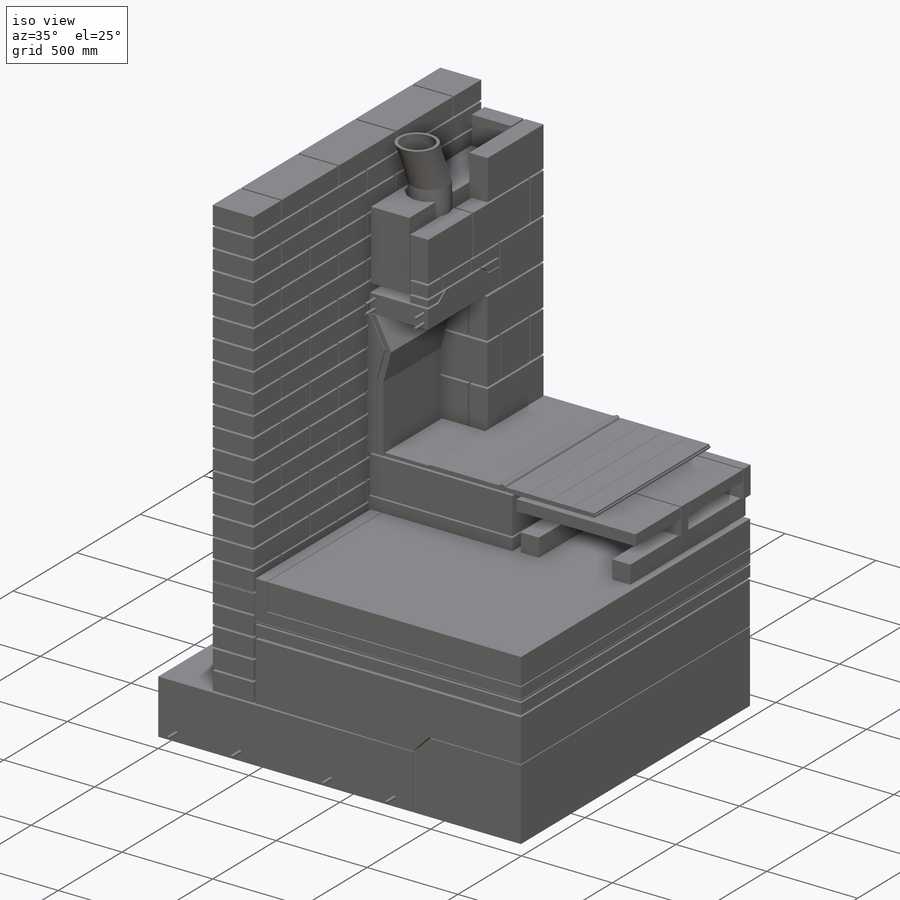
[diagram: iso view]
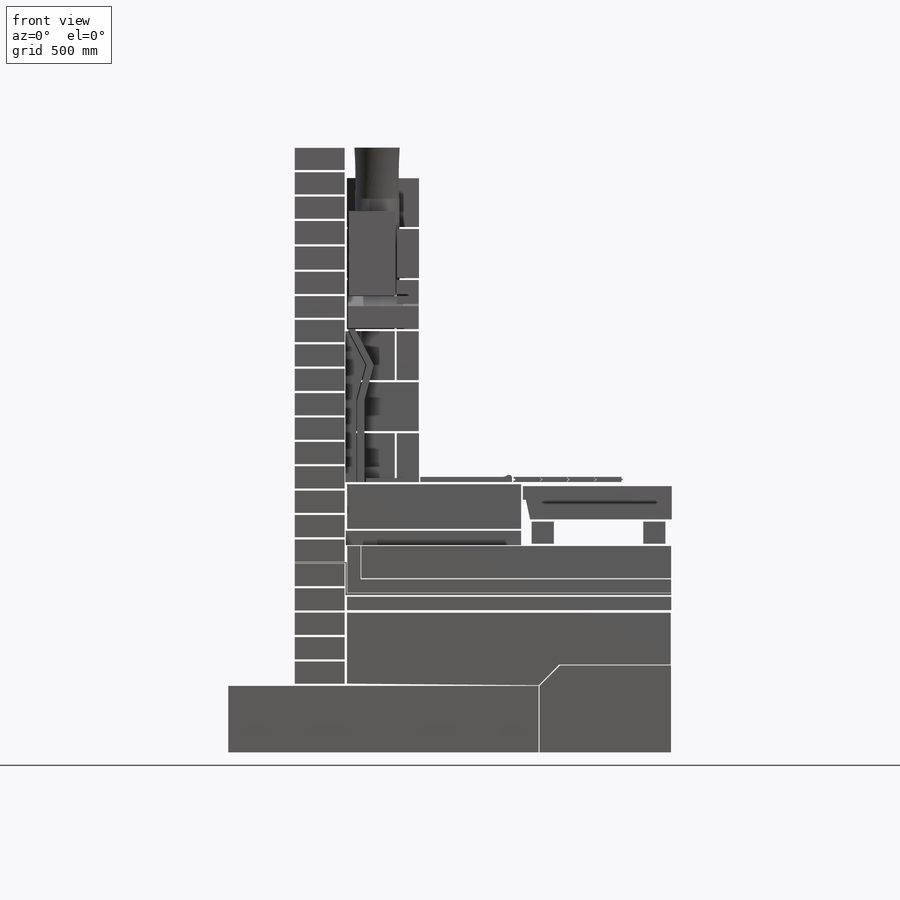
[diagram: front view]
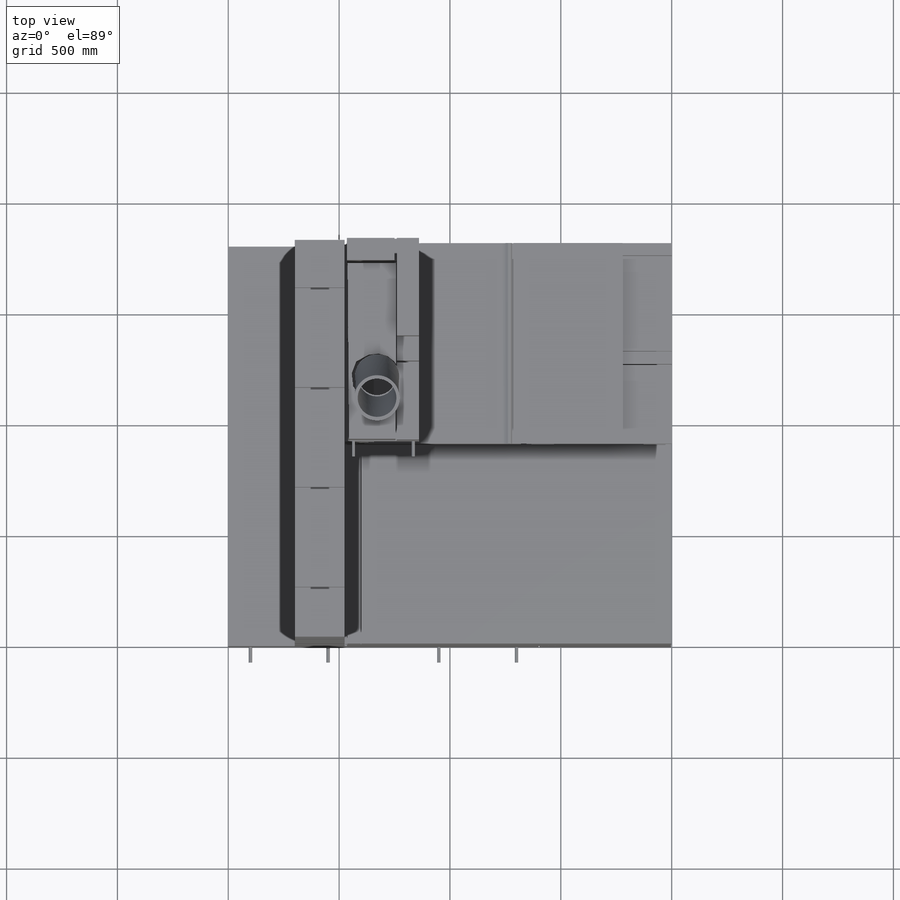
[diagram: top view]
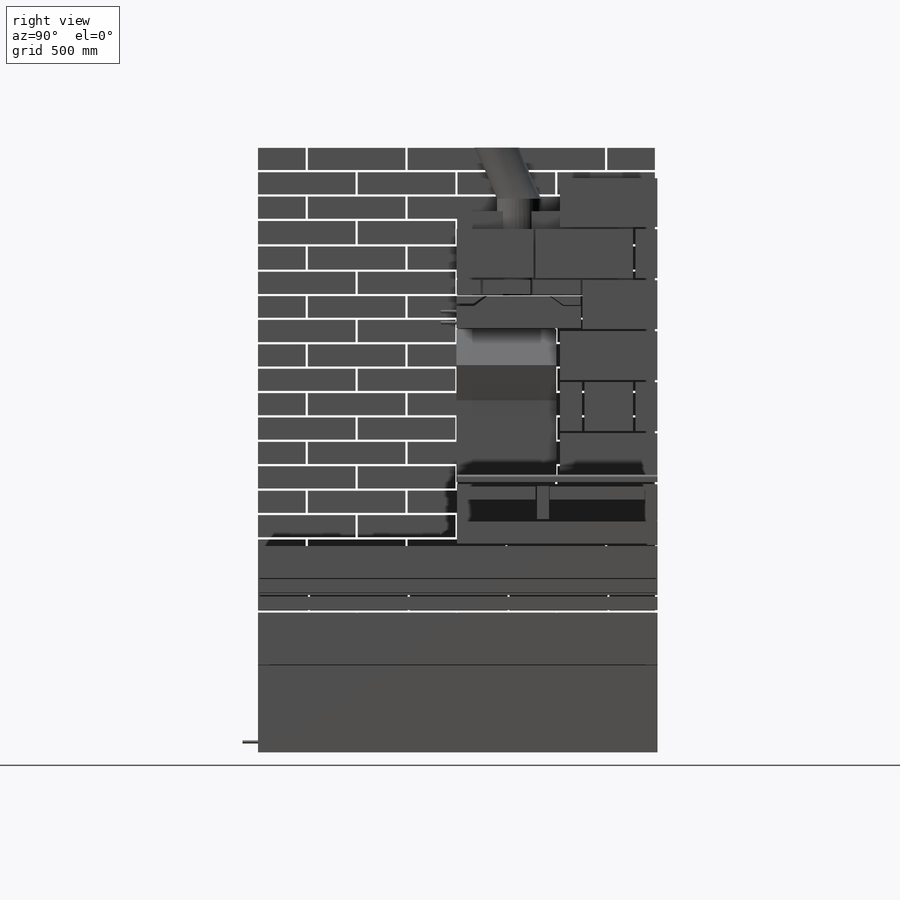
[diagram: right view]
SOLIDWORKS PART (.sldprt)
format: sldprt  version: not decoded by parser v0  size: 2,905,088 bytes
history: native  units: mm
features: sketch x116, extrude x109, cut_extrude x6, plane x6, material x1, shell x1 (+15 scaffold rows collapsed)
feature tree (254):
  scaffold x15  (default folders/planes/origin — collapsed)
  material  "Material <not specified>"
  sketch  "Sketch1"  dims[D1=1400.0mm D2=300.0mm]
  extrude  "Extrude1"  Depth=1802mm
  sketch  "Sketch2"  dims[D1=100.0mm D2=225.0mm D3=10.0mm D4=300.0mm]
  extrude  "Extrude2"  Depth=440mm
  sketch  "Sketch3"  dims[D1=440.0mm D2=100.0mm D3=10.0mm]
  extrude  "Extrude3"  Depth=225mm
  sketch  "Sketch4"  dims[D1=440.0mm D2=10.0mm D3=10.0mm D4=100.0mm]
  extrude  "Extrude4"  Depth=225mm
  sketch  "Sketch5"  dims[D1=215.0mm D2=100.0mm D3=10.0mm]
  extrude  "Extrude5"  Depth=225mm
  sketch  "Sketch6"  dims[D1=440.0mm D2=100.0mm D3=10.0mm D4=10.0mm]
  extrude  "Extrude6"  Depth=225mm
  sketch  "Sketch7"  dims[D1=440.0mm D2=100.0mm D3=10.0mm D4=10.0mm]
  extrude  "Extrude7"  Depth=225mm
  sketch  "Sketch8"  dims[D1=440.0mm D2=100.0mm D3=10.0mm D4=10.0mm]
  extrude  "Extrude8"  Depth=225mm
  sketch  "Sketch9"  dims[D1=440.0mm D2=100.0mm D3=10.0mm D4=10.0mm]
  extrude  "Extrude9"  Depth=225mm
  sketch  "Sketch10"  dims[D1=215.0mm D2=100.0mm D3=10.0mm]
  extrude  "Extrude10"  Depth=225mm
  sketch  "Sketch11"  dims[D1=440.0mm D2=100.0mm D3=10.0mm]
  extrude  "Extrude11"  Depth=225mm
  sketch  "Sketch12"  dims[D1=440.0mm D2=100.0mm D3=10.0mm D4=10.0mm]
  extrude  "Extrude12"  Depth=225mm
  sketch  "Sketch13"  dims[D1=440.0mm D2=10.0mm D3=10.0mm]
  extrude  "Extrude13"  Depth=225mm
  sketch  "Sketch14"  dims[D1=440.0mm D2=100.0mm D3=10.0mm D4=10.0mm]
  extrude  "Extrude14"  Depth=225mm
  sketch  "Sketch15"  dims[D1=225.0mm D2=100.0mm D3=10.0mm]
  extrude  "Extrude15"  Depth=225mm
  sketch  "Sketch16"  dims[D1=440.0mm D2=100.0mm D3=10.0mm D4=10.0mm]
  extrude  "Extrude16"  Depth=225mm
  sketch  "Sketch17"  dims[D1=440.0mm D2=10.0mm D3=10.0mm D4=100.0mm]
  extrude  "Extrude17"  Depth=225mm
  sketch  "Sketch18"  dims[D1=440.0mm D2=100.0mm D3=10.0mm D4=10.0mm]
  extrude  "Extrude18"  Depth=225mm
  sketch  "Sketch19"  dims[D1=205.0mm D2=100.0mm D3=10.0mm D4=10.0mm]
  extrude  "Extrude19"  Depth=225mm
  sketch  "Sketch20"  dims[D1=440.0mm D2=100.0mm D3=10.0mm]
  extrude  "Extrude20"  Depth=225mm
  sketch  "Sketch21"  dims[D1=440.0mm D2=100.0mm D3=10.0mm D4=10.0mm]
  extrude  "Extrude21"  Depth=225mm
  sketch  "Sketch22"  dims[c1.D1=440.0mm c1.D2=10.0mm c1.D3=10.0mm c2.D2=10.0mm]
  extrude  "Extrude22"  Depth=225mm
  sketch  "Sketch23"  dims[D1=440.0mm D2=100.0mm D3=10.0mm D4=10.0mm]
  extrude  "Extrude23"  Depth=225mm
  sketch  "Sketch24"  dims[D1=215.0mm D2=100.0mm D3=10.0mm]
  extrude  "Extrude24"  Depth=225mm
  sketch  "Sketch25"  dims[D1=440.0mm D2=100.0mm D3=10.0mm D4=10.0mm]
  extrude  "Extrude25"  Depth=225mm
  sketch  "Sketch26"  dims[D1=440.0mm D2=10.0mm D3=10.0mm]
  extrude  "Extrude26"  Depth=225mm
  sketch  "Sketch27"  dims[c1.D1=440.0mm c1.D2=10.0mm c1.D3=10.0mm c1.D4=100.0mm c1.D5=~11.220409mm c2.D2=10.0mm]
  extrude  "Extrude27"  Depth=225mm
  sketch  "Sketch28"  dims[D1=215.0mm D2=100.0mm D3=10.0mm]
  extrude  "Extrude28"  Depth=225mm
  sketch  "Sketch29"  dims[D1=440.0mm D2=100.0mm D3=10.0mm]
  extrude  "Extrude29"  Depth=225mm
  sketch  "Sketch30"  dims[D1=440.0mm D2=10.0mm D3=10.0mm D4=100.0mm]
  extrude  "Extrude30"  Depth=225mm
  sketch  "Sketch31"  dims[D1=440.0mm D2=10.0mm D3=10.0mm]
  extrude  "Extrude31"  Depth=225mm
  sketch  "Sketch32"  dims[D1=100.0mm D2=440.0mm D3=10.0mm D4=10.0mm]
  extrude  "Extrude32"  Depth=225mm
  sketch  "Sketch33"  dims[D1=215.0mm D2=100.0mm D3=10.0mm]
  extrude  "Extrude33"  Depth=225mm
  sketch  "Sketch34"  dims[D1=440.0mm D2=100.0mm D3=10.0mm D4=10.0mm]
  extrude  "Extrude34"  Depth=225mm
  sketch  "Sketch35"  dims[D1=440.0mm D2=10.0mm D3=100.0mm D4=10.0mm]
  extrude  "Extrude35"  Depth=225mm
  sketch  "Sketch36"  dims[D1=100.0mm D2=440.0mm D3=10.0mm D4=10.0mm]
  extrude  "Extrude36"  Depth=225mm
  sketch  "Sketch37"  dims[D1=100.0mm D2=215.0mm D3=10.0mm D4=10.0mm]
  extrude  "Extrude37"  Depth=225mm
  sketch  "Sketch38"  dims[D1=440.0mm D2=100.0mm D3=10.0mm]
  extrude  "Extrude38"  Depth=225mm
  sketch  "Sketch39"  dims[D1=440.0mm D2=100.0mm D3=10.0mm D4=10.0mm]
  extrude  "Extrude39"  Depth=225mm
  sketch  "Sketch40"  dims[D1=440.0mm D2=100.0mm D3=10.0mm D4=10.0mm]
  extrude  "Extrude40"  Depth=225mm
  sketch  "Sketch41"  dims[D1=440.0mm D2=100.0mm D3=10.0mm]
  extrude  "Extrude41"  Depth=225mm
  sketch  "Sketch42"  dims[D1=215.0mm D2=100.0mm D3=10.0mm D4=~103.94738mm]
  extrude  "Extrude42"  Depth=225mm
  sketch  "Sketch43"  dims[D1=440.0mm D2=100.0mm D3=10.0mm D4=10.0mm]
  extrude  "Extrude43"  Depth=225mm
  sketch  "Sketch44"  dims[D1=440.0mm D2=10.0mm D3=10.0mm D4=100.0mm]
  extrude  "Extrude44"  Depth=225mm
  sketch  "Sketch45"  dims[D1=440.0mm D2=100.0mm D3=10.0mm D4=10.0mm]
  extrude  "Extrude45"  Depth=225mm
  sketch  "Sketch46"  dims[D1=215.0mm D2=10.0mm D3=10.0mm]
  extrude  "Extrude46"  Depth=225mm
  sketch  "Sketch47"
  extrude  "Extrude47"  [1 undecoded]
  sketch  "Sketch48"
  extrude  "Extrude48"  [1 undecoded]
  sketch  "Sketch49"  dims[D1=60.0mm]
  extrude  "Extrude49"  [1 undecoded]
  sketch  "Sketch50"
  extrude  "Extrude50"  [1 undecoded]
  sketch  "Sketch51"
  extrude  "Extrude51"  [1 undecoded]
  sketch  "Sketch52"
  extrude  "Extrude52"  [1 undecoded]
  sketch  "Sketch54"
  extrude  "Extrude53"  Depth=905mm
  sketch  "Sketch55"
  extrude  "Extrude54"  Depth=785mm
  sketch  "Sketch56"  dims[D1=440.0mm D2=100.0mm D3=10.0mm]
  extrude  "Extrude55"  Depth=225mm
  sketch  "Sketch57"  dims[D1=440.0mm D2=100.0mm D3=10.0mm D4=10.0mm]
  extrude  "Extrude56"  Depth=225mm
  sketch  "Sketch58"  dims[D1=440.0mm D2=10.0mm D3=10.0mm D4=100.0mm]
  extrude  "Extrude57"  Depth=225mm
  sketch  "Sketch59"  dims[D1=440.0mm D2=100.0mm D3=10.0mm D4=10.0mm]
  extrude  "Extrude58"  Depth=225mm
  sketch  "Sketch60"  dims[D1=215.0mm D2=100.0mm D3=10.0mm D4=0.0mm D5=10.0mm]
  extrude  "Extrude59"  Depth=225mm
  sketch  "Sketch61"  dims[D1=440.0mm D2=10.0mm D3=10.0mm]
  extrude  "Extrude60"  Depth=225mm
  sketch  "Sketch62"  dims[D1=440.0mm D2=100.0mm D3=10.0mm D4=10.0mm]
  extrude  "Extrude61"  Depth=225mm
  sketch  "Sketch63"  dims[D1=440.0mm D2=100.0mm D3=10.0mm D4=10.0mm]
  extrude  "Extrude62"  Depth=225mm
  sketch  "Sketch64"  dims[D1=215.0mm D2=10.0mm D3=10.0mm]
  extrude  "Extrude63"  Depth=225mm
  sketch  "Sketch65"  dims[D1=440.0mm D2=100.0mm D3=10.0mm D4=440.0mm D5=100.0mm D6=10.0mm D7=10.0mm D8=440.0mm D9=10.0mm D10=440.0mm D11=100.0mm D12=10.0mm D13=10.0mm]
  extrude  "Extrude64"  Depth=225mm
  sketch  "Sketch66"  dims[D1=215.0mm D2=100.0mm D3=10.0mm D4=440.0mm D5=10.0mm D6=440.0mm D7=10.0mm D8=440.0mm D9=10.0mm D10=215.0mm D11=10.0mm]
  extrude  "Extrude65"  Depth=225mm
  sketch  "Sketch67"  dims[D1=10.0mm D2=100.0mm D3=440.0mm D4=440.0mm D5=10.0mm D6=440.0mm D7=10.0mm D8=440.0mm D9=10.0mm]
  extrude  "Extrude66"  Depth=225mm
  sketch  "Sketch68"  dims[D1=215.0mm D2=0.0mm D3=10.0mm D4=440.0mm D5=10.0mm D6=440.0mm D7=10.0mm D8=440.0mm D9=10.0mm D10=215.0mm D11=10.0mm]
  extrude  "Extrude67"  Depth=225mm
  sketch  "Sketch69"  dims[D1=215.0mm D2=220.0mm D3=10.0mm D4=10.0mm]
  extrude  "Extrude68"  Depth=100mm
  sketch  "Sketch71"  dims[D1=100.0mm D2=220.0mm D3=10.0mm D4=10.0mm]
  extrude  "Extrude70"  Depth=440mm
  sketch  "Sketch72"  dims[D1=215.0mm D2=100.0mm D3=~8.968148mm]
  extrude  "Extrude71"  Depth=220mm
  sketch  "Sketch73"  dims[D1=325.0mm D2=10.0mm D3=220.0mm]
  extrude  "Extrude74"  Depth=100mm
  sketch  "Sketch74"
  extrude  "Extrude75"  Depth=100mm
  sketch  "Sketch75"  dims[D1=10.0mm D2=10.0mm D3=220.0mm]
  extrude  "Extrude76"  Depth=100mm
  sketch  "Sketch76"  dims[D1=440.0mm D2=10.0mm D3=0.0mm D4=100.0mm D5=440.0mm D6=100.0mm D7=10.0mm D8=10.0mm D9=440.0mm D10=10.0mm D11=440.0mm D12=10.0mm]
  extrude  "Extrude77"  Depth=225mm
  sketch  "Sketch77"  dims[D1=215.0mm D2=10.0mm D3=0.0mm D4=440.0mm D5=10.0mm D6=10.0mm D7=440.0mm D8=10.0mm D9=440.0mm D10=10.0mm D11=215.0mm D12=10.0mm]
  extrude  "Extrude78"  Depth=225mm
  sketch  "Sketch78"  dims[D1=440.0mm D2=10.0mm D3=0.0mm D4=440.0mm D5=10.0mm D6=440.0mm D7=10.0mm D8=440.0mm D9=10.0mm]
  extrude  "Extrude79"  Depth=225mm
  sketch  "Sketch79"  dims[D1=215.0mm D2=100.0mm D3=0.0mm D4=10.0mm D5=440.0mm D6=10.0mm D7=440.0mm D8=10.0mm D9=440.0mm D10=10.0mm D11=215.0mm D12=10.0mm]
  extrude  "Extrude81"  Depth=225mm
  sketch  "Sketch81"  dims[D1=440.0mm D2=10.0mm D3=0.0mm D4=220.0mm]
  extrude  "Extrude82"  Depth=100mm
  sketch  "Sketch82"  dims[D1=215.0mm D2=220.0mm D3=10.0mm]
  extrude  "Extrude83"  Depth=100mm
  sketch  "Sketch83"
  extrude  "Extrude84"  Depth=100mm
  sketch  "Sketch84"
  extrude  "Extrude85"  Depth=320mm
  sketch  "Sketch85"  dims[D1=200.0mm D2=135.0mm D3=280.0mm D4=~294.099248mm]
  cut_extrude  "Extrude86"  [1 undecoded]
  sketch  "Sketch86"  dims[D1=80.0mm D2=75.0mm]
  cut_extrude  "Extrude93"  [1 undecoded]
  plane  "Plane4"  Offset=220mm
  sketch  "Sketch87"
  extrude  "Extrude94"  Depth=210mm
  sketch  "Sketch88"
  cut_extrude  "Extrude95"  [1 undecoded]
  plane  "Plane5"  Offset=10mm
  sketch  "Sketch89"
  extrude  "Extrude96"  Depth=210mm
  sketch  "Sketch90"
  cut_extrude  "Extrude97"  [1 undecoded]
  sketch  "Sketch91"
  extrude  "Extrude98"  Depth=450mm
  sketch  "Sketch92"
  extrude  "Extrude99"  Depth=450mm
  sketch  "Sketch93"  dims[D1=440.0mm D2=220.0mm D3=10.0mm]
  extrude  "Extrude100"  Depth=100mm
  sketch  "Sketch94"  dims[D1=220.0mm D2=10.0mm D3=215.0mm D4=10.0mm]
  extrude  "Extrude101"  Depth=100mm
  sketch  "Sketch97"  dims[D1=215.0mm D2=10.0mm D3=10.0mm]
  extrude  "Extrude103"  Depth=100mm
  sketch  "Sketch98"  dims[D1=215.0mm D2=10.0mm D3=~108.404544mm D4=10.0mm]
  extrude  "Extrude105"  Depth=100mm
  sketch  "Sketch99"  dims[D1=10.0mm D2=~61.132767mm]
  extrude  "Extrude106"  Depth=100mm
  sketch  "Sketch100"  dims[D1=440.0mm D2=100.0mm D3=10.0mm D4=440.0mm D5=100.0mm D6=10.0mm D7=10.0mm D8=440.0mm D9=10.0mm D10=10.0mm D11=440.0mm D12=10.0mm D13=10.0mm]
  extrude  "Extrude107"  Depth=225mm
  sketch  "Sketch101"  dims[D1=215.0mm D2=10.0mm D3=0.0mm D4=100.0mm D5=440.0mm D6=10.0mm D7=440.0mm D8=10.0mm D9=10.0mm D10=440.0mm D11=10.0mm D12=215.0mm D13=10.0mm]
  extrude  "Extrude108"  Depth=225mm
  plane  "Plane6"  Offset=10mm
  plane  "Plane7"  Offset=220mm
  sketch  "Sketch102"
  shell  "Shell2"  Thickness=15mm
  sketch  "Sketch105"
  cut_extrude  "Extrude110"  Depth=16mm
  sketch  "Sketch106"  dims[D1=100.0mm D2=100.0mm D3=10.0mm]
  extrude  "Extrude111"  [1 undecoded]
  sketch  "Sketch107"  dims[c1.D1=100.0mm c1.D2=100.0mm c1.D3=10.0mm c1.D4=150.0mm c1.D5=10.0mm c1.D6=~679.093341mm c2.D5=~155.284446mm c2.D1=0.0mm]
  extrude  "Extrude112"  Depth=55mm
  sketch  "Sketch108"  dims[D1=100.0mm D2=100.0mm D3=10.0mm]
  extrude  "Extrude113"  [1 undecoded]
  plane  "Plane8"  Offset=490mm
  sketch  "Sketch109"
  extrude  "Extrude114"  Depth=55mm
  sketch  "Sketch110"
  extrude  "Extrude115"  [1 undecoded]
  sketch  "Sketch111"
  extrude  "Extrude116"  [1 undecoded]
  sketch  "Sketch113"
  extrude  "Extrude117"  [1 undecoded]
  sketch  "Sketch114"  dims[D1=60.0mm D2=10.0mm]
  extrude  "Extrude118"  [1 undecoded]
  sketch  "Sketch115"  dims[c1.D1=~42.120878mm c2.D1=90.0deg c3.D1=60.0mm c3.D2=~354.591982mm c3.D3=10.0mm]
  extrude  "Extrude119"  [1 undecoded]
  sketch  "Sketch116"  dims[D1=325.0mm D2=220.0mm D3=10.0mm D4=10.0mm]
  extrude  "Extrude120"  Depth=100mm
  sketch  "Sketch118"  dims[D1=440.0mm D2=10.0mm D3=10.0mm]
  extrude  "Extrude121"  Depth=100mm
  sketch  "Sketch119"  dims[D1=10.0mm D2=220.0mm D3=10.0mm D4=0.0mm]
  extrude  "Extrude122"  Depth=100mm
  sketch  "Sketch122"  dims[D1=440.0mm D2=220.0mm D3=10.0mm D4=0.0mm]
  extrude  "Extrude124"  Depth=100mm
  sketch  "Sketch120"
  cut_extrude  "Extrude123"  Depth=40mm
  sketch  "Sketch123"  dims[D1=220.0mm D2=215.0mm D3=10.0mm D4=0.0mm]
  extrude  "Extrude125"  Depth=100mm
  plane  "Plane9"  Offset=3mm
  sketch  "Sketch124"
  extrude  "Extrude126"  Depth=380mm
  sketch  "Sketch125"  dims[D1=15.0mm D2=15.0mm D3=15.0mm D4=15.0mm D5=25.0mm D6=25.0mm D7=25.0mm D8=25.0mm D9=25.0mm D10=25.0mm D11=25.0mm D12=25.0mm]
  extrude  "Extrude127"  Depth=70mm
  sketch  "Sketch126"  dims[D6=15.0mm D7=15.0mm D8=15.0mm D9=15.0mm D1=100.0mm D2=100.0mm D3=350.0mm D4=350.0mm D5=500.0mm]
  extrude  "Extrude128"  Depth=70mm
decode coverage: 191 of 232 modeling features carry decoded parameters
note: ~ marks probable driven/reference dimensions
note: 17 parameter values undecoded
summary: no parameter record found for 17 features
note: suppression state not decoded; provenance and decode notes live in map.json
